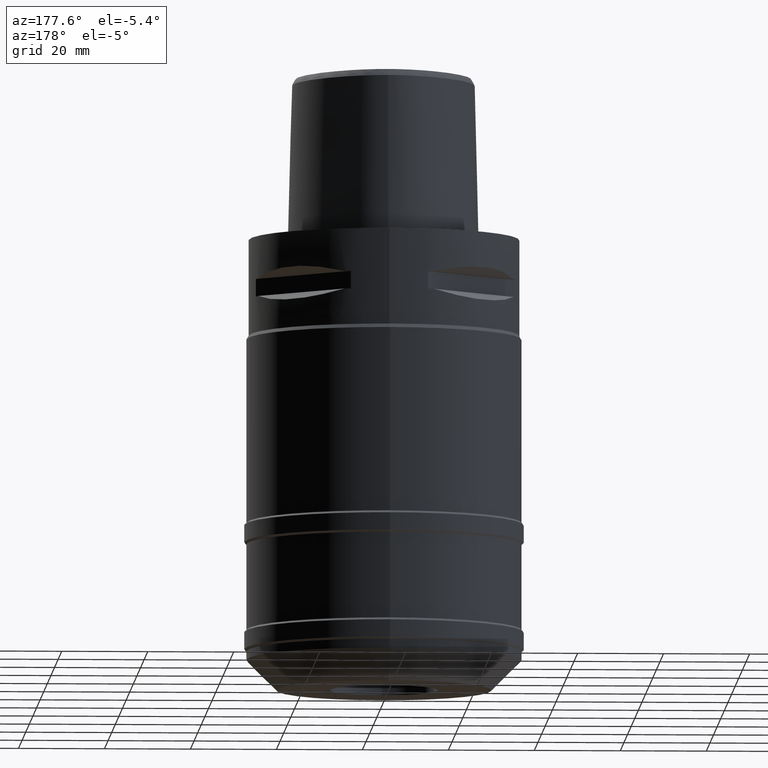
[diagram: clean part render]
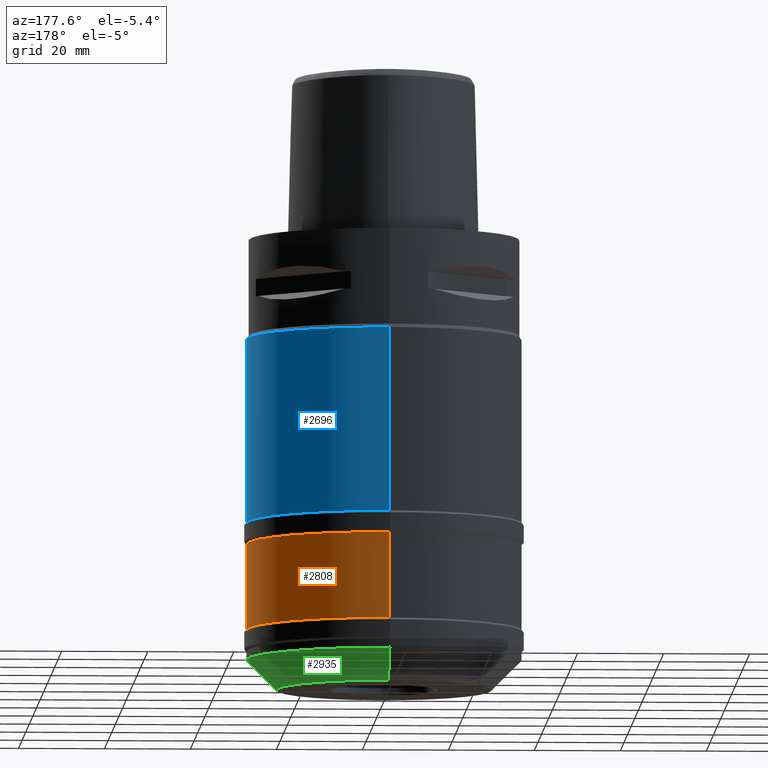
[diagram: same view with three faces highlighted in distinct colors, each labeled with its STEP entity id]
A machine part, auxiliary view with three faces highlighted in distinct colors.
Their STEP definitions:

[orange] entity #2808 — the highlighted cylindrical surface (partial cylindrical patch) has radius 32 mm, axis along (0, 0, -1).
#675=CARTESIAN_POINT('',(0.E0,0.E0,-7.1E1));
#676=DIRECTION('',(0.E0,0.E0,-1.E0));
#677=DIRECTION('',(0.E0,1.E0,0.E0));
#678=AXIS2_PLACEMENT_3D('',#675,#676,#677);
#714=DIRECTION('',(0.E0,0.E0,-1.E0));
#715=VECTOR('',#714,2.E1);
#716=CARTESIAN_POINT('',(0.E0,-3.2E1,-7.1E1));
#717=LINE('',#716,#715);
#721=DIRECTION('',(0.E0,0.E0,-1.E0));
#722=VECTOR('',#721,2.E1);
#723=CARTESIAN_POINT('',(0.E0,3.2E1,-7.1E1));
#724=LINE('',#723,#722);
#743=CARTESIAN_POINT('',(0.E0,0.E0,-9.1E1));
#744=DIRECTION('',(0.E0,0.E0,1.E0));
#745=DIRECTION('',(0.E0,-1.E0,0.E0));
#746=AXIS2_PLACEMENT_3D('',#743,#744,#745);
#1762=CARTESIAN_POINT('',(0.E0,3.2E1,-7.1E1));
#1763=VERTEX_POINT('',#1762);
#1764=CARTESIAN_POINT('',(0.E0,-3.2E1,-7.1E1));
#1765=VERTEX_POINT('',#1764);
#1766=CARTESIAN_POINT('',(0.E0,3.2E1,-9.1E1));
#1767=VERTEX_POINT('',#1766);
#1768=CARTESIAN_POINT('',(0.E0,-3.2E1,-9.1E1));
#1769=VERTEX_POINT('',#1768);
#2796=CARTESIAN_POINT('',(0.E0,1.288940756103E-14,5.25E0));
#2797=DIRECTION('',(0.E0,0.E0,-1.E0));
#2798=DIRECTION('',(0.E0,-1.E0,0.E0));
#2799=AXIS2_PLACEMENT_3D('',#2796,#2797,#2798);
#2800=CYLINDRICAL_SURFACE('',#2799,3.2E1);
#2801=ORIENTED_EDGE('',*,*,#2786,.T.);
#2803=ORIENTED_EDGE('',*,*,#2802,.F.);
#2804=ORIENTED_EDGE('',*,*,#2789,.F.);
#2805=ORIENTED_EDGE('',*,*,#2760,.F.);
#2806=EDGE_LOOP('',(#2801,#2803,#2804,#2805));
#2807=FACE_OUTER_BOUND('',#2806,.F.);
#679=CIRCLE('',#678,3.2E1);
#747=CIRCLE('',#746,3.2E1);
#2760=EDGE_CURVE('',#1763,#1765,#679,.T.);
#2786=EDGE_CURVE('',#1763,#1767,#724,.T.);
#2789=EDGE_CURVE('',#1765,#1769,#717,.T.);
#2802=EDGE_CURVE('',#1769,#1767,#747,.T.);
#2808=ADVANCED_FACE('',(#2807),#2800,.T.);

[blue] entity #2696 — the highlighted cylindrical surface (partial cylindrical patch) has radius 32 mm, axis along (0, 0, -1).
#555=CARTESIAN_POINT('',(0.E0,0.E0,-2.321202540378E1));
#556=DIRECTION('',(0.E0,0.E0,-1.E0));
#557=DIRECTION('',(0.E0,1.E0,0.E0));
#558=AXIS2_PLACEMENT_3D('',#555,#556,#557);
#594=DIRECTION('',(0.E0,-1.129216946762E-14,-1.E0));
#595=VECTOR('',#594,4.278797459622E1);
#596=CARTESIAN_POINT('',(0.E0,-3.2E1,-2.321202540378E1));
#597=LINE('',#596,#595);
#601=DIRECTION('',(0.E0,1.129216946762E-14,-1.E0));
#602=VECTOR('',#601,4.278797459622E1);
#603=CARTESIAN_POINT('',(0.E0,3.2E1,-2.321202540378E1));
#604=LINE('',#603,#602);
#623=CARTESIAN_POINT('',(0.E0,0.E0,-6.6E1));
#624=DIRECTION('',(0.E0,0.E0,1.E0));
#625=DIRECTION('',(0.E0,-1.E0,0.E0));
#626=AXIS2_PLACEMENT_3D('',#623,#624,#625);
#1746=CARTESIAN_POINT('',(0.E0,3.2E1,-2.321202540378E1));
#1747=VERTEX_POINT('',#1746);
#1748=CARTESIAN_POINT('',(0.E0,-3.2E1,-2.321202540378E1));
#1749=VERTEX_POINT('',#1748);
#1750=CARTESIAN_POINT('',(0.E0,3.2E1,-6.6E1));
#1751=VERTEX_POINT('',#1750);
#1752=CARTESIAN_POINT('',(0.E0,-3.2E1,-6.6E1));
#1753=VERTEX_POINT('',#1752);
#2684=CARTESIAN_POINT('',(0.E0,1.288940756103E-14,5.25E0));
#2685=DIRECTION('',(0.E0,0.E0,-1.E0));
#2686=DIRECTION('',(0.E0,-1.E0,0.E0));
#2687=AXIS2_PLACEMENT_3D('',#2684,#2685,#2686);
#2688=CYLINDRICAL_SURFACE('',#2687,3.2E1);
#2689=ORIENTED_EDGE('',*,*,#2674,.T.);
#2691=ORIENTED_EDGE('',*,*,#2690,.F.);
#2692=ORIENTED_EDGE('',*,*,#2677,.F.);
#2693=ORIENTED_EDGE('',*,*,#2648,.F.);
#2694=EDGE_LOOP('',(#2689,#2691,#2692,#2693));
#2695=FACE_OUTER_BOUND('',#2694,.F.);
#559=CIRCLE('',#558,3.2E1);
#627=CIRCLE('',#626,3.2E1);
#2648=EDGE_CURVE('',#1747,#1749,#559,.T.);
#2674=EDGE_CURVE('',#1747,#1751,#604,.T.);
#2677=EDGE_CURVE('',#1749,#1753,#597,.T.);
#2690=EDGE_CURVE('',#1753,#1751,#627,.T.);
#2696=ADVANCED_FACE('',(#2695),#2688,.T.);

[green] entity #2935 — the highlighted conical surface has half-angle 45 deg.
#848=DIRECTION('',(0.E0,-7.071067811865E-1,-7.071067811865E-1));
#849=VECTOR('',#848,9.899494936612E0);
#850=CARTESIAN_POINT('',(0.E0,3.2E1,-9.8E1));
#851=LINE('',#850,#849);
#855=CARTESIAN_POINT('',(0.E0,0.E0,-9.8E1));
#856=DIRECTION('',(0.E0,0.E0,1.E0));
#857=DIRECTION('',(0.E0,-1.E0,0.E0));
#858=AXIS2_PLACEMENT_3D('',#855,#856,#857);
#871=DIRECTION('',(0.E0,7.071067811865E-1,-7.071067811865E-1));
#872=VECTOR('',#871,9.899494936612E0);
#873=CARTESIAN_POINT('',(0.E0,-3.2E1,-9.8E1));
#874=LINE('',#873,#872);
#878=CARTESIAN_POINT('',(0.E0,0.E0,-1.05E2));
#879=DIRECTION('',(0.E0,0.E0,1.E0));
#880=DIRECTION('',(0.E0,-1.E0,0.E0));
#881=AXIS2_PLACEMENT_3D('',#878,#879,#880);
#1782=CARTESIAN_POINT('',(0.E0,3.2E1,-9.8E1));
#1783=VERTEX_POINT('',#1782);
#1784=CARTESIAN_POINT('',(0.E0,-3.2E1,-9.8E1));
#1785=VERTEX_POINT('',#1784);
#1786=CARTESIAN_POINT('',(0.E0,2.5E1,-1.05E2));
#1787=VERTEX_POINT('',#1786);
#1788=CARTESIAN_POINT('',(0.E0,-2.5E1,-1.05E2));
#1789=VERTEX_POINT('',#1788);
#2921=CARTESIAN_POINT('',(0.E0,0.E0,-1.015E2));
#2922=DIRECTION('',(0.E0,0.E0,1.E0));
#2923=DIRECTION('',(0.E0,1.E0,0.E0));
#2924=AXIS2_PLACEMENT_3D('',#2921,#2922,#2923);
#2925=CONICAL_SURFACE('',#2924,2.85E1,4.5E1);
#2927=ORIENTED_EDGE('',*,*,#2926,.T.);
#2929=ORIENTED_EDGE('',*,*,#2928,.F.);
#2931=ORIENTED_EDGE('',*,*,#2930,.F.);
#2932=ORIENTED_EDGE('',*,*,#2914,.T.);
#2933=EDGE_LOOP('',(#2927,#2929,#2931,#2932));
#2934=FACE_OUTER_BOUND('',#2933,.F.);
#859=CIRCLE('',#858,3.2E1);
#882=CIRCLE('',#881,2.5E1);
#2914=EDGE_CURVE('',#1785,#1783,#859,.T.);
#2926=EDGE_CURVE('',#1783,#1787,#851,.T.);
#2928=EDGE_CURVE('',#1789,#1787,#882,.T.);
#2930=EDGE_CURVE('',#1785,#1789,#874,.T.);
#2935=ADVANCED_FACE('',(#2934),#2925,.T.);